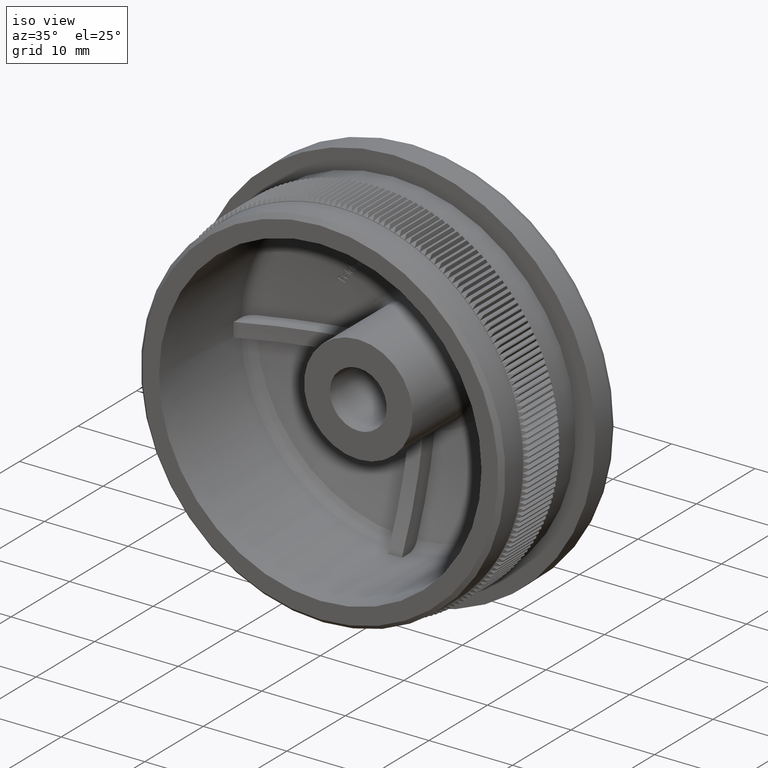
[diagram: clean part render]
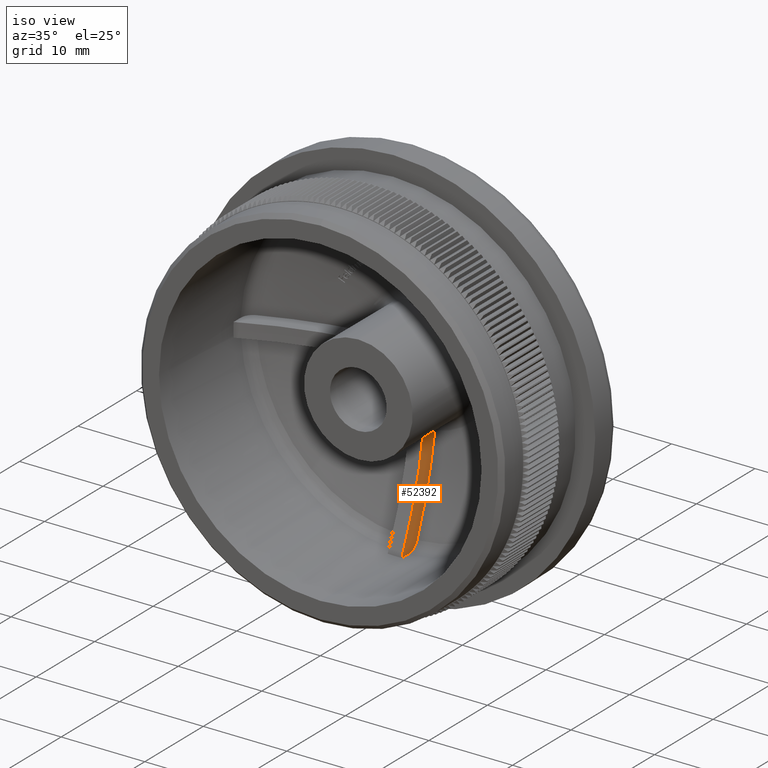
[diagram: same view with one face highlighted and labeled with its STEP entity id]
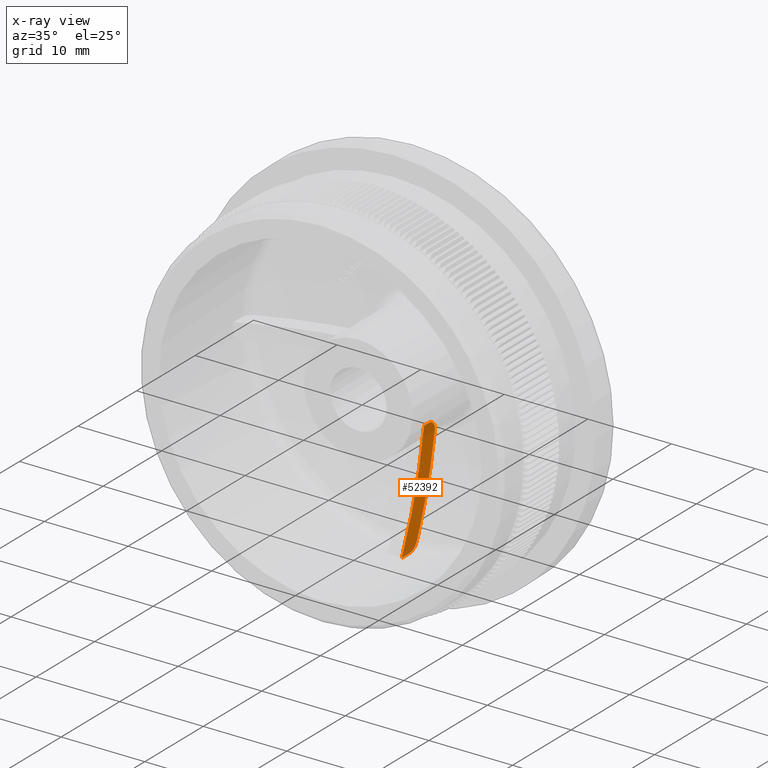
[diagram: x-ray of the same camera — body ghosted, the highlighted face saturated]
A machine part, iso view. The second image highlights one B-rep face of the part: STEP entity #52392.
The next image is the same camera in x-ray: the body ghosted, the highlighted face saturated — about 8% of this face is hidden behind the body in this view.
In plain terms, the highlighted planar face has unit normal (1, 0, 0).
Its self-contained STEP definition (entity closure, byte-faithful):
#420 = EDGE_CURVE ( 'NONE', #43699, #35177, #41787, .T. ) ;
#484 = CIRCLE ( 'NONE', #28099, 46.06855118450546600 ) ;
#681 = AXIS2_PLACEMENT_3D ( 'NONE', #7205, #29763, #7020 ) ;
#1382 = CARTESIAN_POINT ( 'NONE',  ( 0.8500000000000009800, 500000.0000000000600, -6.444183423832689600 ) ) ;
#2988 = CARTESIAN_POINT ( 'NONE',  ( 0.8500000000000009800, 17.36872697614444400, -6.444183423832689600 ) ) ;
#4960 = DIRECTION ( 'NONE',  ( 1.000000000000000000, 0.0000000000000000000, 2.000017756130879000E-016 ) ) ;
#6716 = CARTESIAN_POINT ( 'NONE',  ( 0.8500000000000035300, 15.26401839050933500, -18.49069112387371700 ) ) ;
#7020 = DIRECTION ( 'NONE',  ( 2.007411001179447500E-016, -1.335266643481160600E-014, -1.000000000000000000 ) ) ;
#7205 = CARTESIAN_POINT ( 'NONE',  ( 0.8499999999999996400, -29.10639209225691100, 1.700015092711246200E-016 ) ) ;
#7317 = VECTOR ( 'NONE', #20678, 1000.000000000000000 ) ;
#7683 = VERTEX_POINT ( 'NONE', #51161 ) ;
#8766 = CARTESIAN_POINT ( 'NONE',  ( 0.8500000000000010900, 17.65774949549525600, -6.476250568721551000 ) ) ;
#8838 = ORIENTED_EDGE ( 'NONE', *, *, #16873, .F. ) ;
#9210 = ORIENTED_EDGE ( 'NONE', *, *, #28712, .T. ) ;
#11496 = VERTEX_POINT ( 'NONE', #31463 ) ;
#15597 = FACE_OUTER_BOUND ( 'NONE', #44631, .T. ) ;
#15856 = CARTESIAN_POINT ( 'NONE',  ( 0.8500000000000037500, 15.18878614423706500, -18.61648727148786600 ) ) ;
#16056 = VECTOR ( 'NONE', #36518, 1000.000000000000000 ) ;
#16377 = LINE ( 'NONE', #34301, #7317 ) ;
#16873 = EDGE_CURVE ( 'NONE', #35177, #36379, #16377, .T. ) ;
#17377 = CARTESIAN_POINT ( 'NONE',  ( 0.8500000000000012000, 17.51501299444123200, -6.444183423832637200 ) ) ;
#19783 = CARTESIAN_POINT ( 'NONE',  ( 0.8500000000000033100, 15.32066155052988800, -18.35357952088276100 ) ) ;
#20678 = DIRECTION ( 'NONE',  ( 0.0000000000000000000, -1.000000000000000000, 0.0000000000000000000 ) ) ;
#21217 = EDGE_CURVE ( 'NONE', #7683, #36379, #484, .T. ) ;
#21630 = CARTESIAN_POINT ( 'NONE',  ( 0.8500000000000000900, 18.37911518012937900, -7.467594418936309700 ) ) ;
#21862 = PLANE ( 'NONE',  #46680 ) ;
#23949 = CARTESIAN_POINT ( 'NONE',  ( 0.8499999999999996400, -29.10639209225696100, 1.700015092711246200E-016 ) ) ;
#24212 = CARTESIAN_POINT ( 'NONE',  ( 0.8500000000000037500, 15.00137856511076800, -18.84559175628611500 ) ) ;
#24594 = CARTESIAN_POINT ( 'NONE',  ( 0.8500000000000036400, 14.52187913035932500, -19.19257728889202100 ) ) ;
#25440 = CIRCLE ( 'NONE', #681, 48.06887742197047700 ) ;
#26407 = EDGE_CURVE ( 'NONE', #54919, #7683, #36251, .T. ) ;
#28099 = AXIS2_PLACEMENT_3D ( 'NONE', #23949, #54933, #36617 ) ;
#28694 = CARTESIAN_POINT ( 'NONE',  ( 0.8500000000000037500, 14.88989577179595600, -18.94671047218188800 ) ) ;
#28712 = EDGE_CURVE ( 'NONE', #11496, #54919, #34063, .T. ) ;
#29075 = CARTESIAN_POINT ( 'NONE',  ( 0.8500000000000036400, 14.23048416297536000, -19.28127329820310400 ) ) ;
#29763 = DIRECTION ( 'NONE',  ( -1.000000000000000000, -0.0000000000000000000, -2.000017756130879000E-016 ) ) ;
#30566 = CARTESIAN_POINT ( 'NONE',  ( 0.8500000000000013100, 18.22396325936209700, -6.910185024321130200 ) ) ;
#30592 = EDGE_CURVE ( 'NONE', #11496, #43699, #25440, .T. ) ;
#31463 = CARTESIAN_POINT ( 'NONE',  ( 0.8500000000000012000, 18.35595469270876000, -7.612004615873666500 ) ) ;
#31564 = CARTESIAN_POINT ( 'NONE',  ( 0.8500000000000000900, 21.97100000000001100, -0.8500000000000000900 ) ) ;
#34063 = B_SPLINE_CURVE_WITH_KNOTS ( 'NONE', 3,
 ( #39679, #21630, #39278, #52833, #30566, #43919, #43521, #8766, #17377, #48748 ),
 .UNSPECIFIED., .F., .F.,
 ( 4, 2, 2, 2, 4 ),
 ( 0.0000000000000000000, 0.0004325356665237785600, 0.0008650713330475571100, 0.001297606999571335600, 0.001730142666095114200 ),
 .UNSPECIFIED. ) ;
#34301 = CARTESIAN_POINT ( 'NONE',  ( 0.8500000000000062000, 21.97100000000001100, -19.28127329820310400 ) ) ;
#35177 = VERTEX_POINT ( 'NONE', #39890 ) ;
#36251 = LINE ( 'NONE', #1382, #16056 ) ;
#36379 = VERTEX_POINT ( 'NONE', #42905 ) ;
#36518 = DIRECTION ( 'NONE',  ( 0.0000000000000000000, -1.000000000000000000, 0.0000000000000000000 ) ) ;
#36617 = DIRECTION ( 'NONE',  ( 2.000435921941120200E-016, 9.037263459122236300E-016, -1.000000000000000000 ) ) ;
#39278 = CARTESIAN_POINT ( 'NONE',  ( 0.8500000000000014200, 18.37054867182611800, -7.320471029894800800 ) ) ;
#39679 = CARTESIAN_POINT ( 'NONE',  ( 0.8500000000000012000, 18.35595469270876000, -7.612004615873666500 ) ) ;
#39890 = CARTESIAN_POINT ( 'NONE',  ( 0.8500000000000062000, 13.93452216768478500, -19.28127329820310400 ) ) ;
#41787 = B_SPLINE_CURVE_WITH_KNOTS ( 'NONE', 3,
 ( #19783, #6716, #15856, #24212, #28694, #24594, #29075, #55551 ),
 .UNSPECIFIED., .F., .F.,
 ( 4, 2, 2, 4 ),
 ( 0.008585940206030713600, 0.009025674378914661000, 0.009465408551798608300, 0.01034487689756650300 ),
 .UNSPECIFIED. ) ;
#42905 = CARTESIAN_POINT ( 'NONE',  ( 0.8500000000000035300, 12.73310967627991300, -19.28127329820309700 ) ) ;
#43521 = CARTESIAN_POINT ( 'NONE',  ( 0.8500000000000012000, 17.92051896968190800, -6.599027630629115600 ) ) ;
#43699 = VERTEX_POINT ( 'NONE', #51956 ) ;
#43919 = CARTESIAN_POINT ( 'NONE',  ( 0.8500000000000012000, 18.03818847265354100, -6.689642952005487000 ) ) ;
#44631 = EDGE_LOOP ( 'NONE', ( #50126, #9210, #52526, #53054, #8838, #55577 ) ) ;
#46680 = AXIS2_PLACEMENT_3D ( 'NONE', #31564, #4960, #53622 ) ;
#48748 = CARTESIAN_POINT ( 'NONE',  ( 0.8500000000000009800, 17.36872697614444400, -6.444183423832689600 ) ) ;
#50126 = ORIENTED_EDGE ( 'NONE', *, *, #30592, .F. ) ;
#51161 = CARTESIAN_POINT ( 'NONE',  ( 0.8500000000000009800, 16.50921826470155200, -6.444183423892371600 ) ) ;
#51956 = CARTESIAN_POINT ( 'NONE',  ( 0.8500000000000033100, 15.32066155052988800, -18.35357952088276100 ) ) ;
#52392 = ADVANCED_FACE ( 'NONE', ( #15597 ), #21862, .T. ) ;
#52526 = ORIENTED_EDGE ( 'NONE', *, *, #26407, .T. ) ;
#52833 = CARTESIAN_POINT ( 'NONE',  ( 0.8500000000000012000, 18.29332486261871100, -7.041766612628965300 ) ) ;
#53054 = ORIENTED_EDGE ( 'NONE', *, *, #21217, .T. ) ;
#53622 = DIRECTION ( 'NONE',  ( 2.000017756130879000E-016, 0.0000000000000000000, -1.000000000000000000 ) ) ;
#54919 = VERTEX_POINT ( 'NONE', #2988 ) ;
#54933 = DIRECTION ( 'NONE',  ( -1.000000000000000000, -0.0000000000000000000, -2.000017756130879000E-016 ) ) ;
#55551 = CARTESIAN_POINT ( 'NONE',  ( 0.8500000000000062000, 13.93452216768478500, -19.28127329820310400 ) ) ;
#55577 = ORIENTED_EDGE ( 'NONE', *, *, #420, .F. ) ;